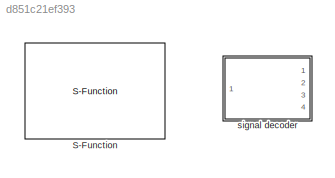
MODEL slx_d851c21ef393
KIND library
CONFIG AbsTol = auto
CONFIG FixedStep = auto
CONFIG MaxStep = auto
CONFIG MinStep = auto
CONFIG RelTol = 1e-3
CONFIG SampleTimeConstraint = Unconstrained
CONFIG Solver = ode45
CONFIG SolverMode = Auto
CONFIG SolverName = ode45
CONFIG StartTime = 0.0
CONFIG StopTime = 10.0
BLOCK [S-Function] S-Function
  FunctionName = sfun_cflie_simple
  Parameters = 1
  Ports = [1, 1]
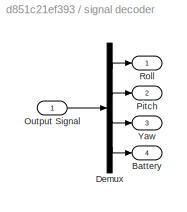
BLOCK [SubSystem] signal decoder
  Ports = [1, 4]
  RequestExecContextInheritance = off
BLOCK [Outport] signal decoder/Battery
  IconDisplay = Port number
  Port = 4
BLOCK [Demux] signal decoder/Demux
  DisplayOption = bar
  Ports = [1, 4]
BLOCK [Inport] signal decoder/Output Signal
  IconDisplay = Port number
BLOCK [Outport] signal decoder/Pitch
  IconDisplay = Port number
  Port = 2
BLOCK [Outport] signal decoder/Roll
  IconDisplay = Port number
BLOCK [Outport] signal decoder/Yaw
  IconDisplay = Port number
  Port = 3
LINE signal decoder/Demux:1 -> signal decoder/Roll:1
LINE signal decoder/Demux:2 -> signal decoder/Pitch:1
LINE signal decoder/Demux:3 -> signal decoder/Yaw:1
LINE signal decoder/Demux:4 -> signal decoder/Battery:1
LINE signal decoder/Output Signal:1 -> signal decoder/Demux:1
